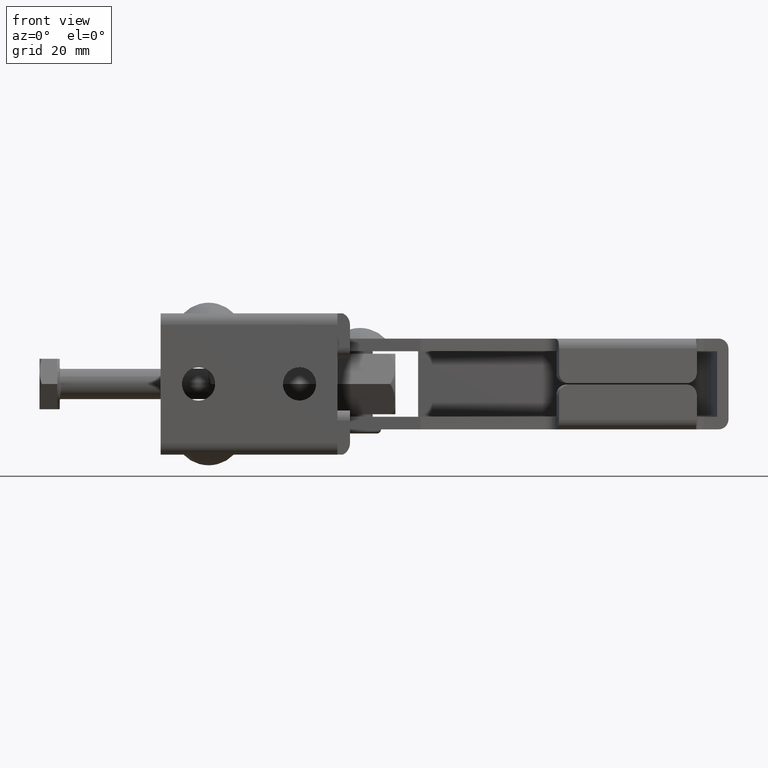
[diagram: clean part render]
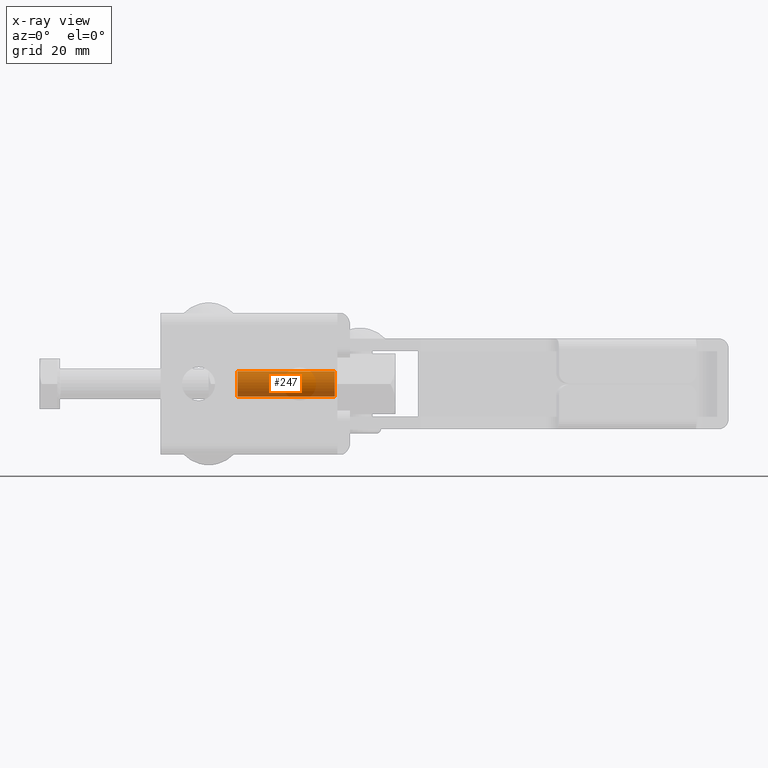
[diagram: x-ray — body ghosted, one internal face saturated and labeled with its STEP entity id]
A machine part, front view, then the same camera in x-ray: the body is ghosted and one INTERNAL B-rep face — a face not visible from any outside direction — is saturated and labeled: STEP entity #247.
In plain terms, the highlighted cylindrical surface (edge-blend (fillet) strip) has radius 2.5 mm, axis along (-1, 0, 0).
Its self-contained STEP definition (entity closure, byte-faithful):
#92 = DIRECTION ( 'NONE',  ( 1.000000000000000000, -0.0000000000000000000, -0.0000000000000000000 ) ) ;
#215 = EDGE_LOOP ( 'NONE', ( #507, #2069, #6028, #3698 ) ) ;
#244 = EDGE_CURVE ( 'NONE', #4487, #2572, #4859, .T. ) ;
#247 = ADVANCED_FACE ( 'NONE', ( #861 ), #6155, .F. ) ;
#458 = VECTOR ( 'NONE', #4788, 1000.000000000000000 ) ;
#507 = ORIENTED_EDGE ( 'NONE', *, *, #244, .T. ) ;
#861 = FACE_OUTER_BOUND ( 'NONE', #215, .T. ) ;
#988 = CARTESIAN_POINT ( 'NONE',  ( 16.99999999999999600, 22.00000000000000400, -2.499999999999996400 ) ) ;
#1534 = DIRECTION ( 'NONE',  ( 1.000000000000000000, -0.0000000000000000000, -0.0000000000000000000 ) ) ;
#1772 = EDGE_CURVE ( 'NONE', #3261, #5613, #4521, .T. ) ;
#1832 = CARTESIAN_POINT ( 'NONE',  ( 16.99999999999999600, 22.00000000000000400, 2.500000000000003600 ) ) ;
#1921 = LINE ( 'NONE', #988, #458 ) ;
#2069 = ORIENTED_EDGE ( 'NONE', *, *, #4552, .T. ) ;
#2145 = CARTESIAN_POINT ( 'NONE',  ( 16.99999999999999600, 22.00000000000000400, 2.500000000000003600 ) ) ;
#2496 = AXIS2_PLACEMENT_3D ( 'NONE', #3359, #92, #3923 ) ;
#2572 = VERTEX_POINT ( 'NONE', #3398 ) ;
#3261 = VERTEX_POINT ( 'NONE', #4559 ) ;
#3359 = CARTESIAN_POINT ( 'NONE',  ( 16.99999999999999600, 22.00000000000000400, 3.541791424061227200E-015 ) ) ;
#3398 = CARTESIAN_POINT ( 'NONE',  ( 16.99999999999999600, 22.00000000000000400, -2.499999999999996400 ) ) ;
#3698 = ORIENTED_EDGE ( 'NONE', *, *, #6064, .F. ) ;
#3923 = DIRECTION ( 'NONE',  ( 0.0000000000000000000, 0.0000000000000000000, 1.000000000000000000 ) ) ;
#3968 = AXIS2_PLACEMENT_3D ( 'NONE', #6079, #5543, #6648 ) ;
#4487 = VERTEX_POINT ( 'NONE', #2145 ) ;
#4521 = CIRCLE ( 'NONE', #6206, 2.500000000000000000 ) ;
#4552 = EDGE_CURVE ( 'NONE', #2572, #5613, #1921, .T. ) ;
#4559 = CARTESIAN_POINT ( 'NONE',  ( -2.250000000000001800, 22.00000000000000400, 2.500000000000003600 ) ) ;
#4602 = VECTOR ( 'NONE', #5647, 1000.000000000000000 ) ;
#4788 = DIRECTION ( 'NONE',  ( -1.000000000000000000, 0.0000000000000000000, 0.0000000000000000000 ) ) ;
#4797 = CARTESIAN_POINT ( 'NONE',  ( -2.249999999999988000, 22.00000000000000400, 3.541791424061227200E-015 ) ) ;
#4859 = CIRCLE ( 'NONE', #2496, 2.500000000000000000 ) ;
#5355 = DIRECTION ( 'NONE',  ( -5.551115123125782700E-015, 0.0000000000000000000, 1.000000000000000000 ) ) ;
#5499 = CARTESIAN_POINT ( 'NONE',  ( -2.249999999999988000, 22.00000000000000400, -2.499999999999996400 ) ) ;
#5543 = DIRECTION ( 'NONE',  ( -1.000000000000000000, 0.0000000000000000000, 0.0000000000000000000 ) ) ;
#5613 = VERTEX_POINT ( 'NONE', #5499 ) ;
#5647 = DIRECTION ( 'NONE',  ( -1.000000000000000000, 0.0000000000000000000, 0.0000000000000000000 ) ) ;
#6028 = ORIENTED_EDGE ( 'NONE', *, *, #1772, .F. ) ;
#6059 = LINE ( 'NONE', #1832, #4602 ) ;
#6064 = EDGE_CURVE ( 'NONE', #4487, #3261, #6059, .T. ) ;
#6079 = CARTESIAN_POINT ( 'NONE',  ( 16.99999999999999600, 22.00000000000000400, 3.541791424061227200E-015 ) ) ;
#6155 = CYLINDRICAL_SURFACE ( 'NONE', #3968, 2.500000000000000000 ) ;
#6206 = AXIS2_PLACEMENT_3D ( 'NONE', #4797, #1534, #5355 ) ;
#6648 = DIRECTION ( 'NONE',  ( 0.0000000000000000000, 0.0000000000000000000, 1.000000000000000000 ) ) ;